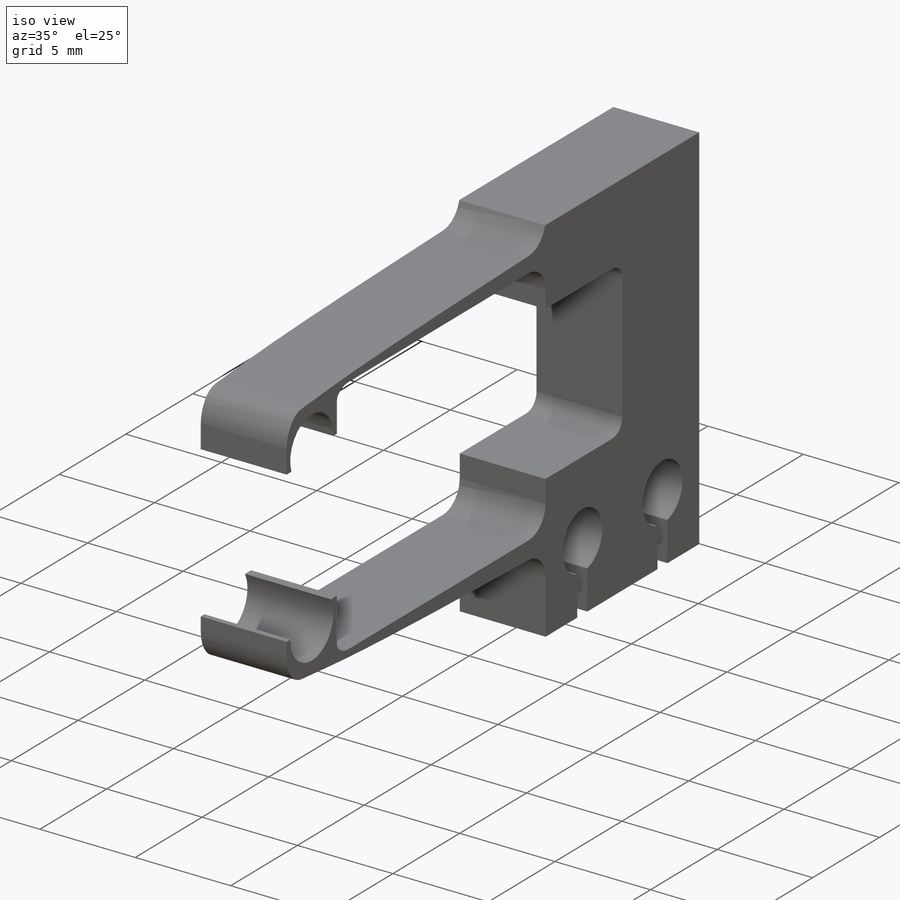
[diagram: iso view]
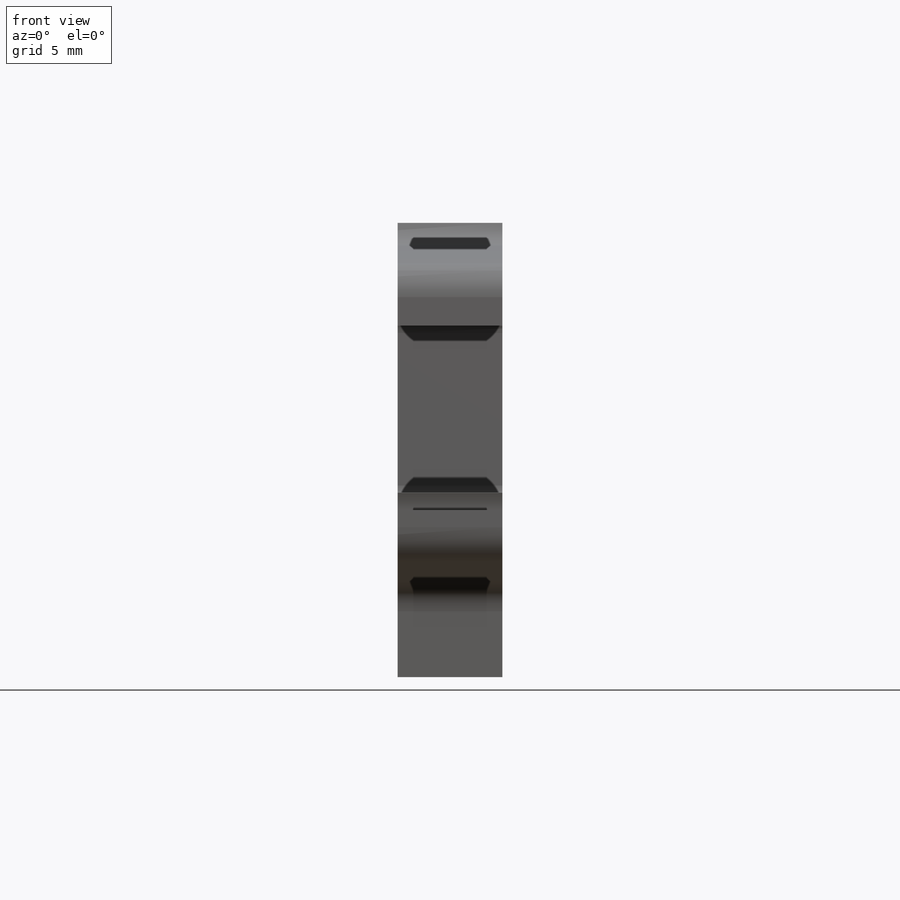
[diagram: front view]
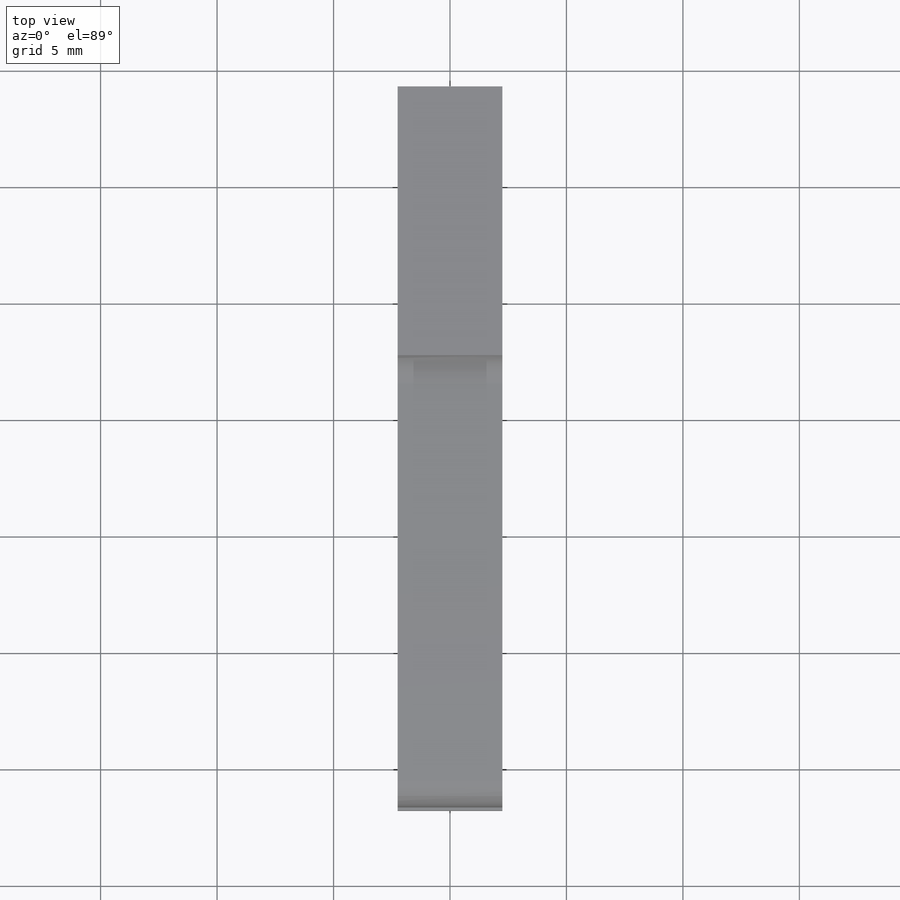
[diagram: top view]
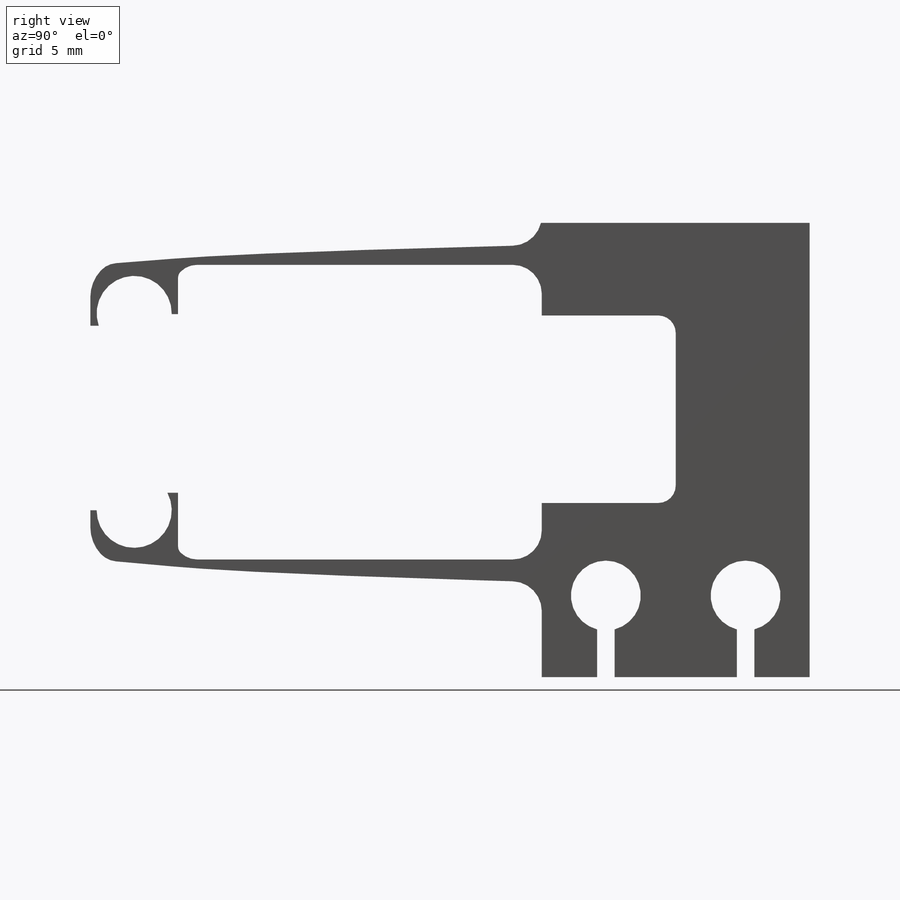
[diagram: right view]
SOLIDWORKS PART (.sldprt)
format: sldprt  version: not decoded by parser v0  size: 1,164,288 bytes
history: native  units: mm
features: sketch x9, extrude x4, cut_extrude x4, fillet x2, material x1 (+11 scaffold rows collapsed)
feature tree (31):
  scaffold x11  (default folders/planes/origin — collapsed)
  material  "Titanium"
  sketch  "Sketch1"  dims[c1.D1=1.5mm c1.D7=0.2mm c1.D13=0.715mm c1.D14=0.715mm c2.D13=1.43mm c2.BallDiameter=6.35mm c2.D2=1.7mm c2.D7=0.75mm c2.D9=4.7625mm c2.D20=1.5875mm c2.D22=3.175mm c2.D11=0.75mm c2.D12=6.35mm c3.D13=~5.455409mm c3.D8=6.35mm c3.D4=0.75mm c3.D14=0.943mm c3.D2=19.0mm c3.D3=2.0mm c4.D4=10.0mm c4.D5=1.61mm c4.D6=0.56mm c4.D8=0.063mm c4.D9=0.428mm c4.D10=0.25mm c4.D11=2.64mm c4.D12=0.5mm c5.D5=1.61mm c5.D14=7.0mm c5.D15=4.0mm c5.D16=3.5mm c5.D17=3.0mm c5.D18=29.0mm c5.D19=22.0mm c5.D10=2.64mm c5.D11=11.0mm c6.D18=29.0mm c6.D20=~18.114459mm c7.D20=1.0deg c7.D21=~1.805213mm c8.D20=~18.093988mm c9.D20=1.0deg c9.D3=5.0mm c9.D4=20.0mm c9.D5=2.0mm c9.D6=21.48mm c9.D8=10.0mm c9.D9=20.0mm c9.D10=~11.728463mm c10.D10=~60.479111deg c10.D11=4.0mm c10.D12=4.0mm c10.D13=0.5mm c11.D10=~6.582228mm c12.D10=20.0deg c12.D14=22.0mm c12.D4=7.0mm c13.D10=13.0mm c13.D11=~1.868265mm c13.D14=20.0mm c13.D15=8.0mm c13.D16=55.0mm c13.D17=25.0mm c13.D12=29.0mm c14.D12=33.0deg c14.D18=1.889mm c14.D19=2.675mm c14.D20=~0.893537mm c14.D21=0.25mm c14.D14=3.2mm c15.D20=0.889mm c15.D16=3.5mm c15.D21=~34.801596mm c15.D23=3.2375mm c15.D24=~2.065985mm c15.D6=19.041mm c15.D12=2.0mm c15.D25=~5.277283mm c16.D25=25.0deg c17.D25=1.0mm c17.D26=~5.357854mm c18.D26=~20.88457deg c18.D12=~2.578508mm c19.D12=40.0deg c19.D13=4.0mm c19.D9=20.0mm c19.D14=2.5mm c19.D15=~1.683263mm c20.D15=10.0deg c20.D16=1.0mm c20.D18=2.0mm c20.D19=10.0mm c20.D8=12.0mm c20.D20=25.0mm c20.D21=15.0mm c20.D22=57.6mm c20.D23=32.6mm c20.D24=8.0mm c21.D8=5.0mm c21.D10=2.0mm c21.D25=35.6mm c21.D21=3.0mm c21.D26=~7.829911mm c22.D21=3.0mm c22.D8=39.73mm c22.D22=~2.309871mm c23.D8=4.325mm c23.D23=4.2mm c23.D21=3.0mm c24.D23=2.0mm c24.D25=~7.829911mm c24.D22=~24.517564mm c24.D19=25.0mm c25.D22=~27.575089mm c25.D27=~18.662606mm c25.D1=23.0mm c25.D3=6.0mm c25.D7=~5.072251mm c25.D5=9.0mm c26.D7=~0.951944mm c26.D8=2.5mm c26.D9=8.0mm c26.D10=5.0mm c26.D11=2.5mm c27.D10=5.0mm c27.D1=8.0mm c27.D5=23.25mm c28.D10=3.0mm c28.D11=5.0mm c28.D12=4.0mm c28.D8=5.75mm c28.D9=3.0mm c29.D10=9.0mm c29.D11=2.5mm c29.D12=3.5mm c29.D13=7.0mm c29.D4=17.25mm c29.D6=16.25mm c29.D9=8.5mm c30.D10=11.5mm c30.D4=17.5mm c30.D11=4.5mm c30.D12=4.5mm c30.D3=2.0mm c30.D7=1.5mm c30.D13=8.05mm c30.D14=2.0mm c31.D7=1.75mm c31.D14=2.0mm c31.D15=2.0mm c31.D16=16.25mm]
  extrude  "Boss-Extrude1"  [1 undecoded]
  sketch  "Sketch4"  dims[D5=1.5mm D1=0.75mm D2=3.0mm D3=8.0mm D4=6.0mm D6=2.75mm D7=2.75mm]
  cut_extrude  "Cut-Extrude1"  [1 undecoded]
  fillet  "Fillet1"  Radius=0.75mm
  sketch  "Sketch2"
  extrude  "Boss-Extrude2"  [1 undecoded]
  sketch  "Sketch3"
  extrude  "Boss-Extrude4"  [1 undecoded]
  fillet  "Fillet2"  Radius=1mm
  sketch  "Sketch6"  dims[c1.D1=1.62mm c1.D3=3.175mm c1.D5=1.5875mm c2.D1=1.5875mm c2.D2=0.1mm c2.D3=0.05mm c2.D4=~0.083773mm c2.D5=~0.01625mm c3.D1=0.025mm]
  cut_extrude  "Cut-Extrude4"  Depth=10mm
  sketch  "Sketch5"  dims[D1=50.0mm]
  sketch  "Sketch9"  dims[c1.D5=3.175mm c1.D1=0.27mm c1.D2=0.75mm c1.D3=0.5mm c1.D4=~0.528818mm c2.D4=~9.957078deg c3.D4=~0.700323mm c4.D4=~38.596246deg]
  extrude  "Boss-Extrude5"  [1 undecoded]
  sketch  "Sketch12"  dims[D1=0.5mm]
  cut_extrude  "Cut-Extrude5"  [1 undecoded]
  cut_extrude  "Cut-Extrude2"  [1 undecoded]
  sketch  "Sketch11"  dims[c1.D2=1.5875mm c1.D1=~0.422003mm c2.D1=~33.385836deg]
decode coverage: 10 of 19 modeling features carry decoded parameters
note: ~ marks probable driven/reference dimensions
note: 7 parameter values undecoded
summary: no parameter record found for 7 features
note: suppression state not decoded; provenance and decode notes live in map.json
